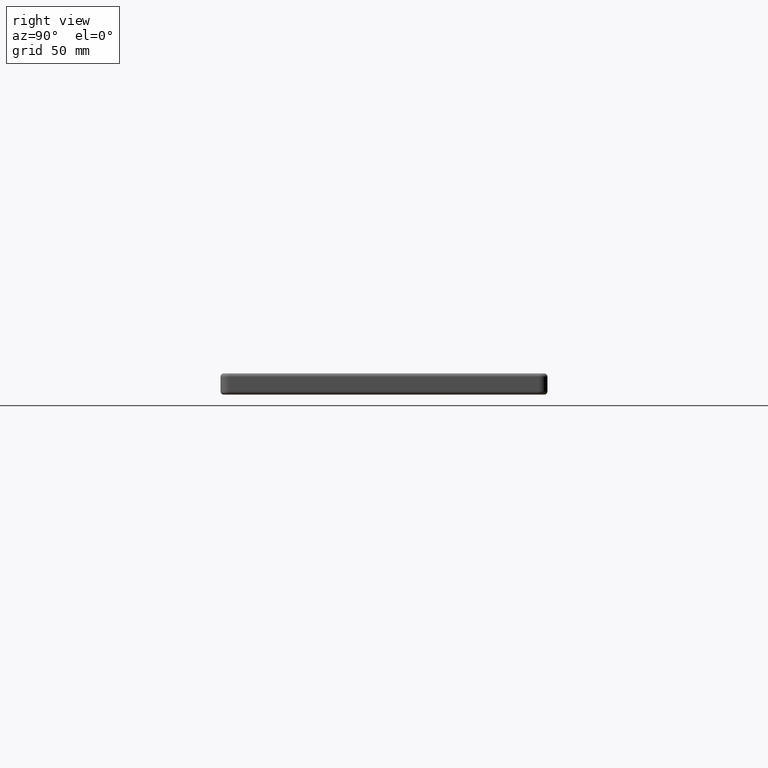
[diagram: clean part render]
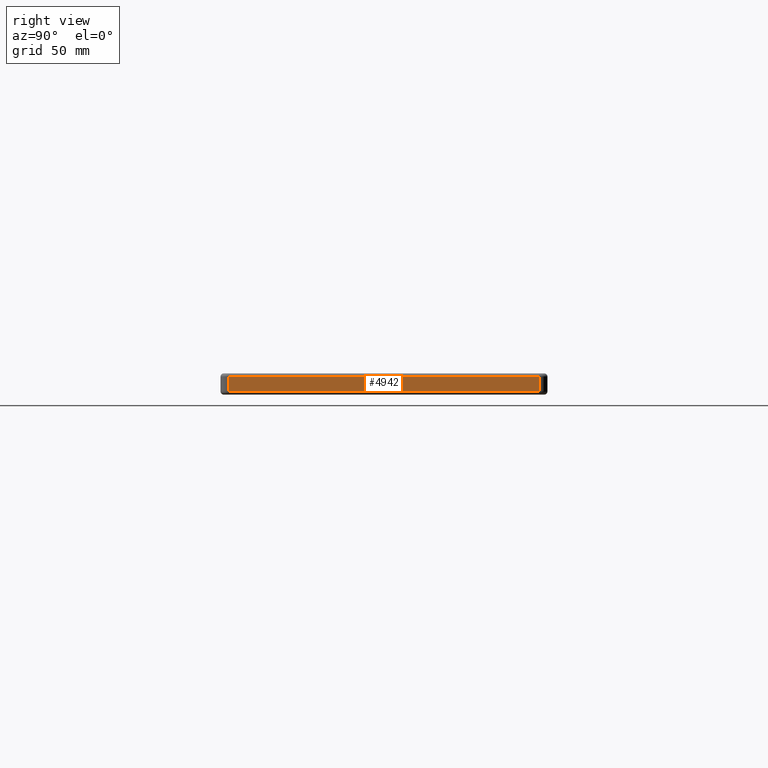
[diagram: same view with one face highlighted and labeled with its STEP entity id]
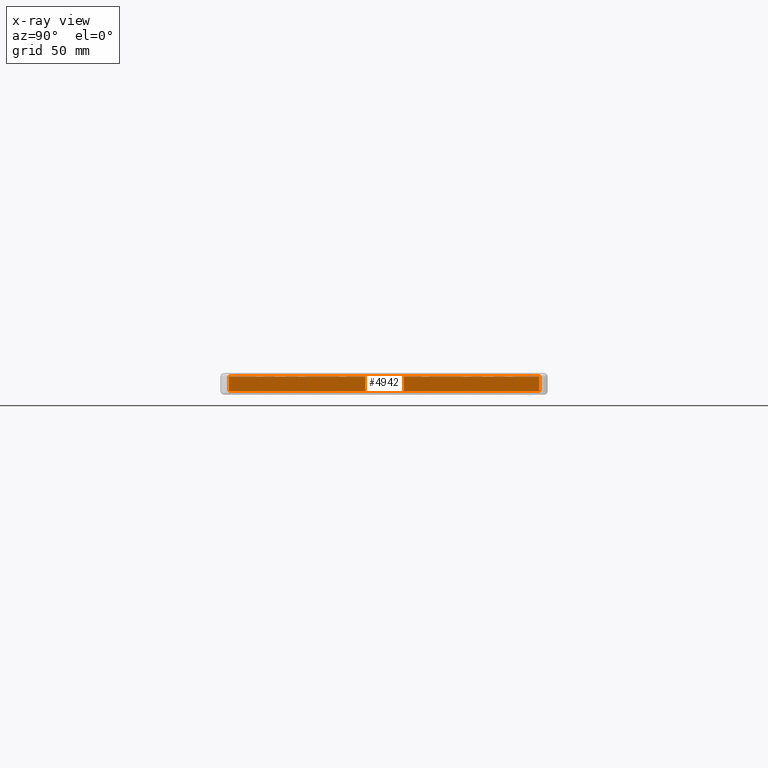
[diagram: x-ray of the same camera — body ghosted, the highlighted face saturated]
A machine part, right view. The second image highlights one B-rep face of the part: STEP entity #4942.
The next image is the same camera in x-ray: the body ghosted, the highlighted face saturated — about 0% of this face is hidden behind the body in this view.
In plain terms, the highlighted planar face has unit normal (1, 0, -0).
Its self-contained STEP definition (entity closure, byte-faithful):
#16 = VECTOR ( 'NONE', #46, 1000.000000000000000 ) ;
#46 = DIRECTION ( 'NONE',  ( 0.0000000000000000000, 0.0000000000000000000, 1.000000000000000000 ) ) ;
#108 = DIRECTION ( 'NONE',  ( 1.000000000000000000, 2.921639538487251300E-016, -0.0000000000000000000 ) ) ;
#279 = LINE ( 'NONE', #8615, #7818 ) ;
#322 = CARTESIAN_POINT ( 'NONE',  ( 200.0000000000000600, -95.00000000000005700, -11.00000000000000000 ) ) ;
#342 = EDGE_CURVE ( 'NONE', #7754, #3166, #279, .T. ) ;
#369 = DIRECTION ( 'NONE',  ( 2.921639538487251300E-016, -1.000000000000000000, -0.0000000000000000000 ) ) ;
#519 = LINE ( 'NONE', #1030, #641 ) ;
#641 = VECTOR ( 'NONE', #369, 1000.000000000000000 ) ;
#767 = DIRECTION ( 'NONE',  ( -2.921639538487251300E-016, 1.000000000000000000, 0.0000000000000000000 ) ) ;
#953 = FACE_OUTER_BOUND ( 'NONE', #4557, .T. ) ;
#974 = CARTESIAN_POINT ( 'NONE',  ( 199.9999999999999400, 95.00000000000017100, -2.000000000000003600 ) ) ;
#1030 = CARTESIAN_POINT ( 'NONE',  ( 200.0000000000000000, -95.00000000000005700, -2.000000000000000000 ) ) ;
#1054 = ORIENTED_EDGE ( 'NONE', *, *, #3291, .T. ) ;
#1976 = DIRECTION ( 'NONE',  ( 0.0000000000000000000, 0.0000000000000000000, 1.000000000000000000 ) ) ;
#2233 = CARTESIAN_POINT ( 'NONE',  ( 200.0000000000000000, -95.00000000000005700, -13.00000000000000000 ) ) ;
#2619 = VERTEX_POINT ( 'NONE', #322 ) ;
#2966 = AXIS2_PLACEMENT_3D ( 'NONE', #2233, #108, #767 ) ;
#3042 = ORIENTED_EDGE ( 'NONE', *, *, #8033, .F. ) ;
#3166 = VERTEX_POINT ( 'NONE', #974 ) ;
#3291 = EDGE_CURVE ( 'NONE', #3166, #4589, #519, .T. ) ;
#3627 = ORIENTED_EDGE ( 'NONE', *, *, #342, .T. ) ;
#3657 = VECTOR ( 'NONE', #6358, 1000.000000000000000 ) ;
#3673 = PLANE ( 'NONE',  #2966 ) ;
#4557 = EDGE_LOOP ( 'NONE', ( #3042, #8800, #3627, #1054 ) ) ;
#4589 = VERTEX_POINT ( 'NONE', #6774 ) ;
#4797 = LINE ( 'NONE', #5584, #3657 ) ;
#4926 = LINE ( 'NONE', #6711, #16 ) ;
#4942 = ADVANCED_FACE ( 'NONE', ( #953 ), #3673, .T. ) ;
#5584 = CARTESIAN_POINT ( 'NONE',  ( 200.0000000000000000, -95.00000000000005700, -11.00000000000000000 ) ) ;
#6358 = DIRECTION ( 'NONE',  ( -2.921639538487251300E-016, 1.000000000000000000, 0.0000000000000000000 ) ) ;
#6384 = CARTESIAN_POINT ( 'NONE',  ( 199.9999999999999400, 95.00000000000017100, -11.00000000000000000 ) ) ;
#6711 = CARTESIAN_POINT ( 'NONE',  ( 200.0000000000000600, -95.00000000000005700, -13.00000000000000000 ) ) ;
#6774 = CARTESIAN_POINT ( 'NONE',  ( 200.0000000000000600, -95.00000000000005700, -2.000000000000003600 ) ) ;
#7754 = VERTEX_POINT ( 'NONE', #6384 ) ;
#7818 = VECTOR ( 'NONE', #1976, 1000.000000000000000 ) ;
#8033 = EDGE_CURVE ( 'NONE', #2619, #4589, #4926, .T. ) ;
#8507 = EDGE_CURVE ( 'NONE', #2619, #7754, #4797, .T. ) ;
#8615 = CARTESIAN_POINT ( 'NONE',  ( 199.9999999999999400, 95.00000000000017100, -13.00000000000000000 ) ) ;
#8800 = ORIENTED_EDGE ( 'NONE', *, *, #8507, .T. ) ;